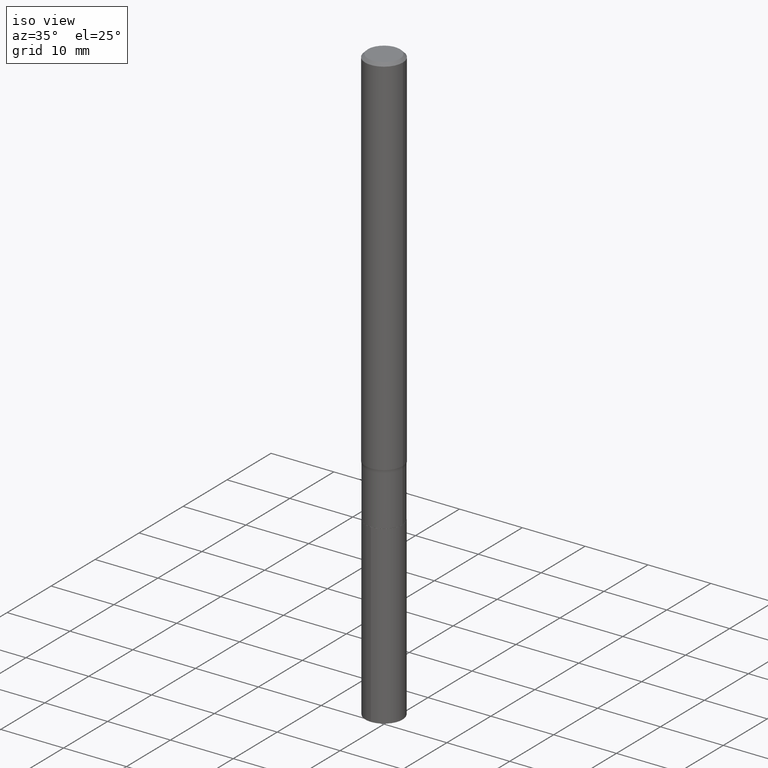
[diagram: clean part render]
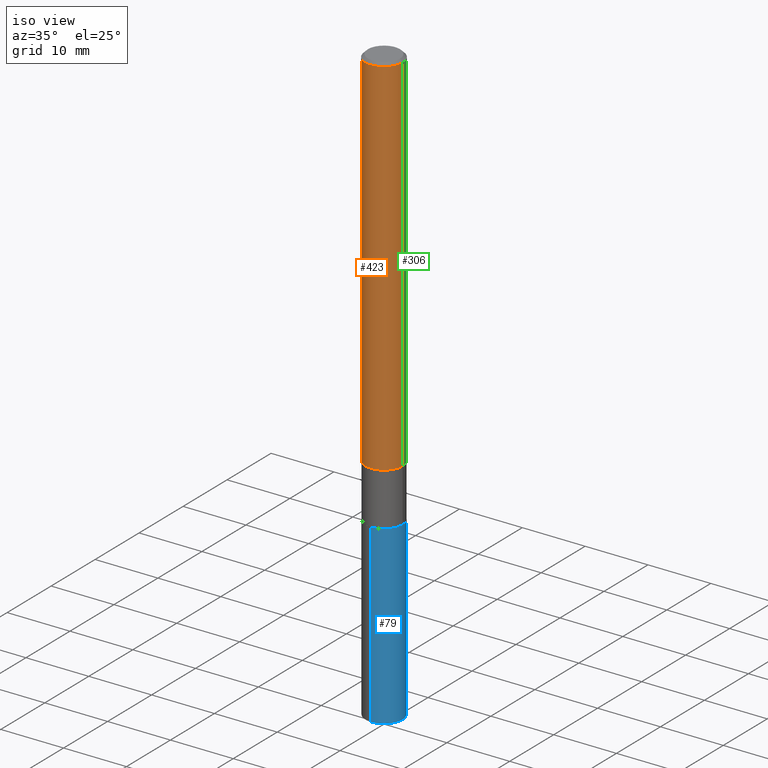
[diagram: same view with three faces highlighted in distinct colors, each labeled with its STEP entity id]
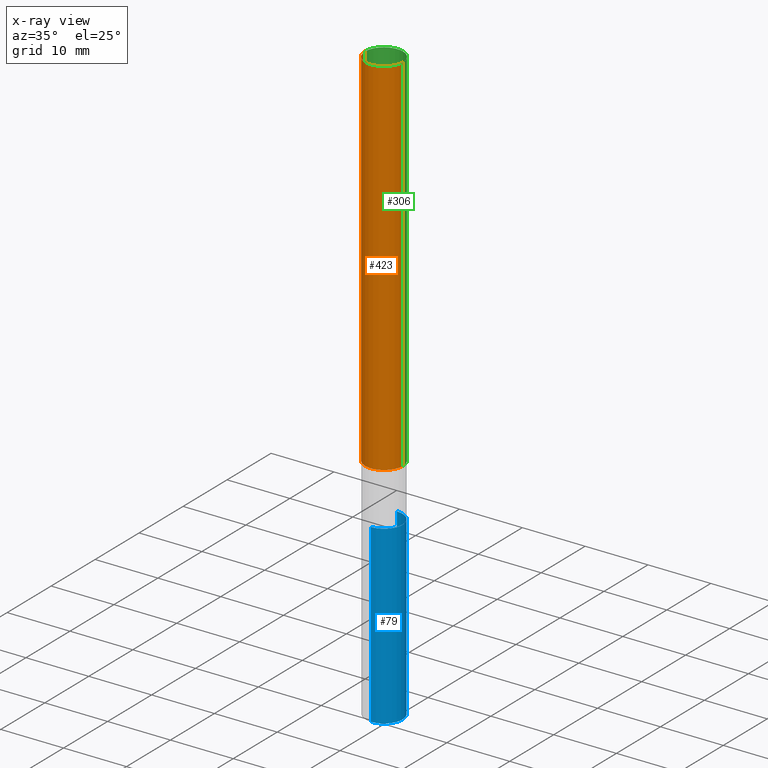
[diagram: x-ray of the same camera — body ghosted, the three highlighted faces saturated]
A machine part, iso view with three faces highlighted in distinct colors.
The next image is the same camera in x-ray (body ghosted, the three faces saturated) — at least one of them is partly hidden behind the body in this view.
Their STEP definitions:

[orange] entity #423 — the highlighted cylindrical surface (edge-blend (fillet) strip) has radius 2.9997 mm, axis along (-0, 0, 1).
#2 = DIRECTION ( 'NONE',  ( 1.000000000000000000, -6.982962677686273810E-15, 0.000000000000000000 ) ) ;
#26 = LINE ( 'NONE', #277, #244 ) ;
#31 = ORIENTED_EDGE ( 'NONE', *, *, #253, .F. ) ;
#77 = ORIENTED_EDGE ( 'NONE', *, *, #129, .T. ) ;
#80 = DIRECTION ( 'NONE',  ( 1.000000000000000000, -6.982962677686267499E-15, 0.000000000000000000 ) ) ;
#96 = FACE_OUTER_BOUND ( 'NONE', #436, .T. ) ;
#103 = VECTOR ( 'NONE', #329, 39.37007874015748143 ) ;
#111 = CIRCLE ( 'NONE', #312, 0.1181000000000000105 ) ;
#115 = DIRECTION ( 'NONE',  ( -2.445468806185136597E-29, 3.491481338843145583E-15, 1.000000000000000000 ) ) ;
#119 = LINE ( 'NONE', #188, #103 ) ;
#126 = AXIS2_PLACEMENT_3D ( 'NONE', #208, #458, #279 ) ;
#127 = CARTESIAN_POINT ( 'NONE',  ( -0.1181000000000002326, -7.201187436172869166E-15, -2.302844445323487310 ) ) ;
#129 = EDGE_CURVE ( 'NONE', #405, #145, #378, .T. ) ;
#144 = DIRECTION ( 'NONE',  ( -2.445468806185136597E-29, 3.491481338843145583E-15, 1.000000000000000000 ) ) ;
#145 = VERTEX_POINT ( 'NONE', #357 ) ;
#159 = CARTESIAN_POINT ( 'NONE',  ( 4.332147990156998495E-31, -6.185159191760674092E-17, -0.01771500000000011954 ) ) ;
#181 = AXIS2_PLACEMENT_3D ( 'NONE', #323, #144, #2 ) ;
#188 = CARTESIAN_POINT ( 'NONE',  ( 0.1181000000000001354, -8.246878922347490515E-16, 5.758764772215007447E-30 ) ) ;
#208 = CARTESIAN_POINT ( 'NONE',  ( 0.000000000000000000, 0.000000000000000000, 0.000000000000000000 ) ) ;
#226 = CARTESIAN_POINT ( 'NONE',  ( 0.1181000000000000105, -8.865394841523550528E-16, -0.01771500000000011954 ) ) ;
#236 = EDGE_CURVE ( 'NONE', #145, #254, #119, .T. ) ;
#244 = VECTOR ( 'NONE', #422, 39.37007874015748143 ) ;
#246 = VERTEX_POINT ( 'NONE', #414 ) ;
#253 = EDGE_CURVE ( 'NONE', #246, #254, #111, .T. ) ;
#254 = VERTEX_POINT ( 'NONE', #226 ) ;
#266 = ORIENTED_EDGE ( 'NONE', *, *, #236, .T. ) ;
#277 = CARTESIAN_POINT ( 'NONE',  ( -0.1181000000000001354, 8.391509709326792818E-16, -5.809262341591050090E-30 ) ) ;
#279 = DIRECTION ( 'NONE',  ( 1.000000000000000000, -6.982962677686266711E-15, 4.876176775795936353E-29 ) ) ;
#312 = AXIS2_PLACEMENT_3D ( 'NONE', #159, #115, #80 ) ;
#323 = CARTESIAN_POINT ( 'NONE',  ( 5.631534256535301615E-29, -8.040338407105549729E-15, -2.302844445323487310 ) ) ;
#329 = DIRECTION ( 'NONE',  ( -2.445468806185136877E-29, 3.491481338843145188E-15, 1.000000000000000000 ) ) ;
#354 = CYLINDRICAL_SURFACE ( 'NONE', #126, 0.1181000000000001354 ) ;
#357 = CARTESIAN_POINT ( 'NONE',  ( 0.1181000000000002326, -8.865026299340299569E-15, -2.302844445323487310 ) ) ;
#378 = CIRCLE ( 'NONE', #181, 0.1181000000000002603 ) ;
#388 = EDGE_CURVE ( 'NONE', #405, #246, #26, .T. ) ;
#405 = VERTEX_POINT ( 'NONE', #127 ) ;
#414 = CARTESIAN_POINT ( 'NONE',  ( -0.1181000000000000105, -3.211944028578897400E-15, -0.01771500000000011954 ) ) ;
#422 = DIRECTION ( 'NONE',  ( -2.445468806185136877E-29, 3.491481338843145188E-15, 1.000000000000000000 ) ) ;
#423 = ADVANCED_FACE ( 'NONE', ( #96 ), #354, .T. ) ;
#429 = ORIENTED_EDGE ( 'NONE', *, *, #388, .F. ) ;
#436 = EDGE_LOOP ( 'NONE', ( #429, #77, #266, #31 ) ) ;
#458 = DIRECTION ( 'NONE',  ( -2.445468806185136597E-29, 3.491481338843145583E-15, 1.000000000000000000 ) ) ;

[blue] entity #79 — the highlighted cylindrical surface (edge-blend (fillet) strip) has radius 2.9502 mm, axis along (-0, 0, 1).
#4 = CARTESIAN_POINT ( 'NONE',  ( 6.446744866865257163E-29, -9.204243105458301447E-15, -2.636200000000000099 ) ) ;
#5 = VERTEX_POINT ( 'NONE', #296 ) ;
#15 = AXIS2_PLACEMENT_3D ( 'NONE', #4, #293, #261 ) ;
#16 = LINE ( 'NONE', #88, #391 ) ;
#24 = VECTOR ( 'NONE', #262, 39.37007874015748143 ) ;
#29 = FACE_OUTER_BOUND ( 'NONE', #438, .T. ) ;
#36 = ORIENTED_EDGE ( 'NONE', *, *, #434, .T. ) ;
#37 = CARTESIAN_POINT ( 'NONE',  ( -8.110711150131954537E-16, -0.1161500000000092042, -2.636199999999999655 ) ) ;
#42 = DIRECTION ( 'NONE',  ( -2.439470355359473651E-29, 3.500071461836113425E-15, 1.000000000000000000 ) ) ;
#57 = CARTESIAN_POINT ( 'NONE',  ( -8.110711150131686325E-16, -0.1161500000000130761, -3.740200000000000191 ) ) ;
#79 = ADVANCED_FACE ( 'NONE', ( #29 ), #138, .T. ) ;
#88 = CARTESIAN_POINT ( 'NONE',  ( 8.252953875854206811E-16, 0.1161499999999908023, -2.636200000000000543 ) ) ;
#108 = VERTEX_POINT ( 'NONE', #37 ) ;
#118 = AXIS2_PLACEMENT_3D ( 'NONE', #385, #42, #404 ) ;
#138 = CYLINDRICAL_SURFACE ( 'NONE', #318, 0.1161500000000000032 ) ;
#152 = CIRCLE ( 'NONE', #15, 0.1161500000000000032 ) ;
#158 = EDGE_CURVE ( 'NONE', #108, #5, #152, .T. ) ;
#178 = DIRECTION ( 'NONE',  ( -6.982962677686265922E-15, -1.000000000000000000, 4.703999989090422785E-15 ) ) ;
#183 = CIRCLE ( 'NONE', #118, 0.1161500000000000171 ) ;
#205 = EDGE_CURVE ( 'NONE', #332, #108, #450, .T. ) ;
#207 = VERTEX_POINT ( 'NONE', #403 ) ;
#222 = CARTESIAN_POINT ( 'NONE',  ( 6.446744866865257163E-29, -9.204243105458301447E-15, -2.636200000000000099 ) ) ;
#231 = DIRECTION ( 'NONE',  ( -2.439470355359473651E-29, 3.500071461836113425E-15, 1.000000000000000000 ) ) ;
#248 = DIRECTION ( 'NONE',  ( -2.439470355359473651E-29, 3.500071461836113425E-15, 1.000000000000000000 ) ) ;
#252 = ORIENTED_EDGE ( 'NONE', *, *, #205, .F. ) ;
#261 = DIRECTION ( 'NONE',  ( -6.982962677686265922E-15, -1.000000000000000000, 4.703999989090422785E-15 ) ) ;
#262 = DIRECTION ( 'NONE',  ( -2.439470355359473651E-29, 3.500071461836113425E-15, 1.000000000000000000 ) ) ;
#286 = EDGE_CURVE ( 'NONE', #207, #5, #16, .T. ) ;
#293 = DIRECTION ( 'NONE',  ( -2.439470355359473651E-29, 3.500071461836113425E-15, 1.000000000000000000 ) ) ;
#296 = CARTESIAN_POINT ( 'NONE',  ( 8.252953875854478968E-16, 0.1161499999999908023, -2.636200000000000543 ) ) ;
#318 = AXIS2_PLACEMENT_3D ( 'NONE', #222, #248, #178 ) ;
#327 = ORIENTED_EDGE ( 'NONE', *, *, #158, .F. ) ;
#332 = VERTEX_POINT ( 'NONE', #57 ) ;
#385 = CARTESIAN_POINT ( 'NONE',  ( 9.139920139182118548E-29, -1.306832199932537301E-14, -3.740200000000000635 ) ) ;
#391 = VECTOR ( 'NONE', #231, 39.37007874015748143 ) ;
#403 = CARTESIAN_POINT ( 'NONE',  ( 8.252953875854341903E-16, 0.1161499999999869581, -3.740200000000001079 ) ) ;
#404 = DIRECTION ( 'NONE',  ( -6.982962677686265922E-15, -1.000000000000000000, 4.703999989090422785E-15 ) ) ;
#410 = ORIENTED_EDGE ( 'NONE', *, *, #286, .T. ) ;
#434 = EDGE_CURVE ( 'NONE', #332, #207, #183, .T. ) ;
#438 = EDGE_LOOP ( 'NONE', ( #36, #410, #327, #252 ) ) ;
#443 = CARTESIAN_POINT ( 'NONE',  ( -8.110711150131954537E-16, -0.1161500000000092042, -2.636199999999999655 ) ) ;
#450 = LINE ( 'NONE', #443, #24 ) ;

[green] entity #306 — the highlighted cylindrical surface (edge-blend (fillet) strip) has radius 2.9997 mm, axis along (-0, 0, 1).
#8 = AXIS2_PLACEMENT_3D ( 'NONE', #76, #142, #394 ) ;
#26 = LINE ( 'NONE', #277, #244 ) ;
#50 = EDGE_CURVE ( 'NONE', #254, #246, #94, .T. ) ;
#55 = CIRCLE ( 'NONE', #99, 0.1181000000000002603 ) ;
#56 = CYLINDRICAL_SURFACE ( 'NONE', #454, 0.1181000000000001354 ) ;
#64 = CARTESIAN_POINT ( 'NONE',  ( 0.000000000000000000, 0.000000000000000000, 0.000000000000000000 ) ) ;
#76 = CARTESIAN_POINT ( 'NONE',  ( 4.332147990156998495E-31, -6.185159191760674092E-17, -0.01771500000000011954 ) ) ;
#93 = FACE_OUTER_BOUND ( 'NONE', #466, .T. ) ;
#94 = CIRCLE ( 'NONE', #8, 0.1181000000000000105 ) ;
#99 = AXIS2_PLACEMENT_3D ( 'NONE', #213, #382, #377 ) ;
#101 = ORIENTED_EDGE ( 'NONE', *, *, #383, .T. ) ;
#103 = VECTOR ( 'NONE', #329, 39.37007874015748143 ) ;
#119 = LINE ( 'NONE', #188, #103 ) ;
#124 = DIRECTION ( 'NONE',  ( 1.000000000000000000, -6.982962677686266711E-15, 4.876176775795936353E-29 ) ) ;
#127 = CARTESIAN_POINT ( 'NONE',  ( -0.1181000000000002326, -7.201187436172869166E-15, -2.302844445323487310 ) ) ;
#142 = DIRECTION ( 'NONE',  ( -2.445468806185136597E-29, 3.491481338843145583E-15, 1.000000000000000000 ) ) ;
#145 = VERTEX_POINT ( 'NONE', #357 ) ;
#180 = ORIENTED_EDGE ( 'NONE', *, *, #50, .F. ) ;
#188 = CARTESIAN_POINT ( 'NONE',  ( 0.1181000000000001354, -8.246878922347490515E-16, 5.758764772215007447E-30 ) ) ;
#189 = ORIENTED_EDGE ( 'NONE', *, *, #388, .T. ) ;
#213 = CARTESIAN_POINT ( 'NONE',  ( 5.631534256535301615E-29, -8.040338407105549729E-15, -2.302844445323487310 ) ) ;
#219 = ORIENTED_EDGE ( 'NONE', *, *, #236, .F. ) ;
#226 = CARTESIAN_POINT ( 'NONE',  ( 0.1181000000000000105, -8.865394841523550528E-16, -0.01771500000000011954 ) ) ;
#236 = EDGE_CURVE ( 'NONE', #145, #254, #119, .T. ) ;
#244 = VECTOR ( 'NONE', #422, 39.37007874015748143 ) ;
#246 = VERTEX_POINT ( 'NONE', #414 ) ;
#254 = VERTEX_POINT ( 'NONE', #226 ) ;
#277 = CARTESIAN_POINT ( 'NONE',  ( -0.1181000000000001354, 8.391509709326792818E-16, -5.809262341591050090E-30 ) ) ;
#306 = ADVANCED_FACE ( 'NONE', ( #93 ), #56, .T. ) ;
#329 = DIRECTION ( 'NONE',  ( -2.445468806185136877E-29, 3.491481338843145188E-15, 1.000000000000000000 ) ) ;
#353 = DIRECTION ( 'NONE',  ( -2.445468806185136597E-29, 3.491481338843145583E-15, 1.000000000000000000 ) ) ;
#357 = CARTESIAN_POINT ( 'NONE',  ( 0.1181000000000002326, -8.865026299340299569E-15, -2.302844445323487310 ) ) ;
#377 = DIRECTION ( 'NONE',  ( 1.000000000000000000, -6.982962677686273810E-15, 0.000000000000000000 ) ) ;
#382 = DIRECTION ( 'NONE',  ( -2.445468806185136597E-29, 3.491481338843145583E-15, 1.000000000000000000 ) ) ;
#383 = EDGE_CURVE ( 'NONE', #145, #405, #55, .T. ) ;
#388 = EDGE_CURVE ( 'NONE', #405, #246, #26, .T. ) ;
#394 = DIRECTION ( 'NONE',  ( 1.000000000000000000, -6.982962677686267499E-15, 0.000000000000000000 ) ) ;
#405 = VERTEX_POINT ( 'NONE', #127 ) ;
#414 = CARTESIAN_POINT ( 'NONE',  ( -0.1181000000000000105, -3.211944028578897400E-15, -0.01771500000000011954 ) ) ;
#422 = DIRECTION ( 'NONE',  ( -2.445468806185136877E-29, 3.491481338843145188E-15, 1.000000000000000000 ) ) ;
#454 = AXIS2_PLACEMENT_3D ( 'NONE', #64, #353, #124 ) ;
#466 = EDGE_LOOP ( 'NONE', ( #101, #189, #180, #219 ) ) ;